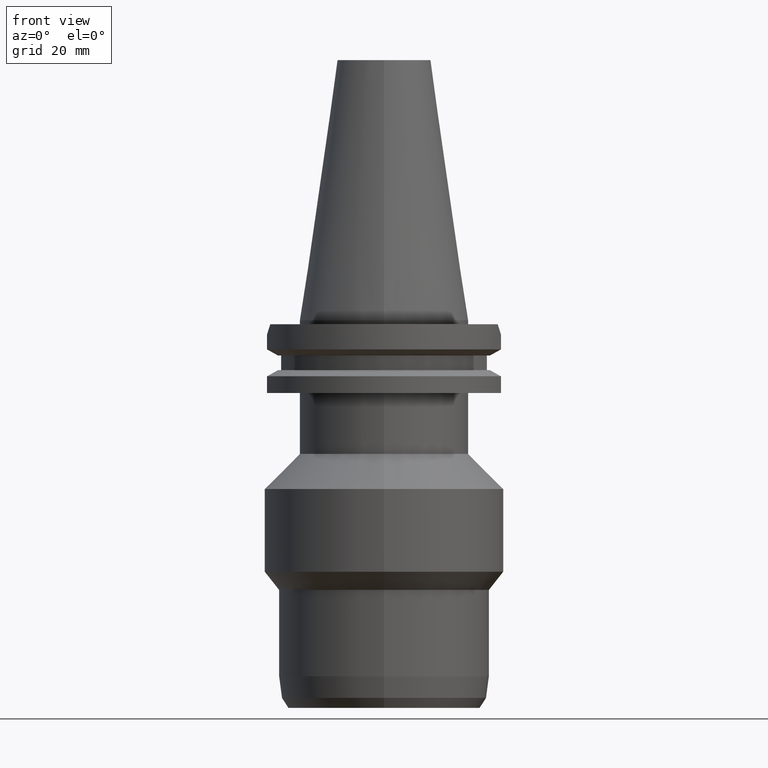
[diagram: clean part render]
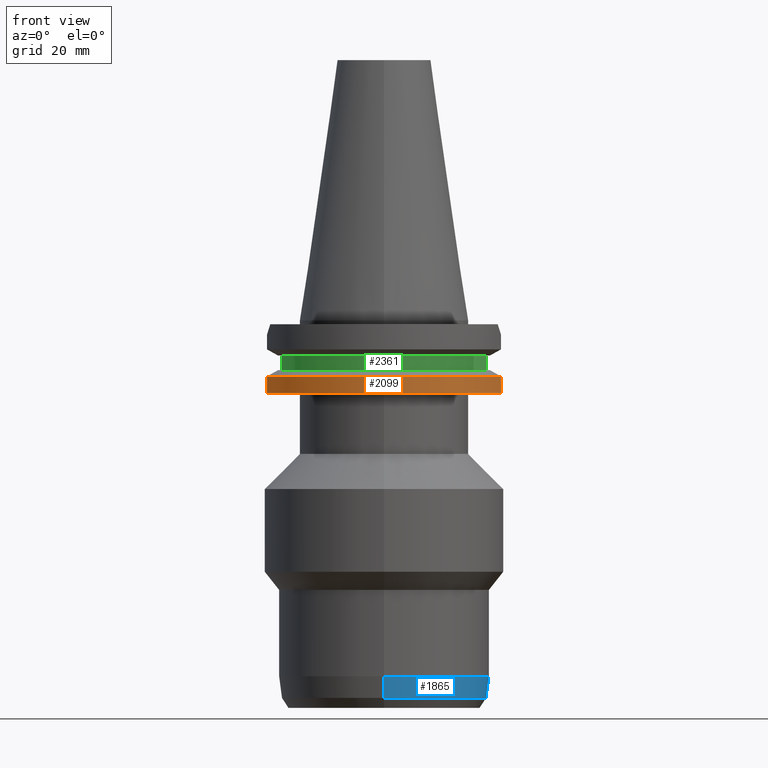
[diagram: same view with three faces highlighted in distinct colors, each labeled with its STEP entity id]
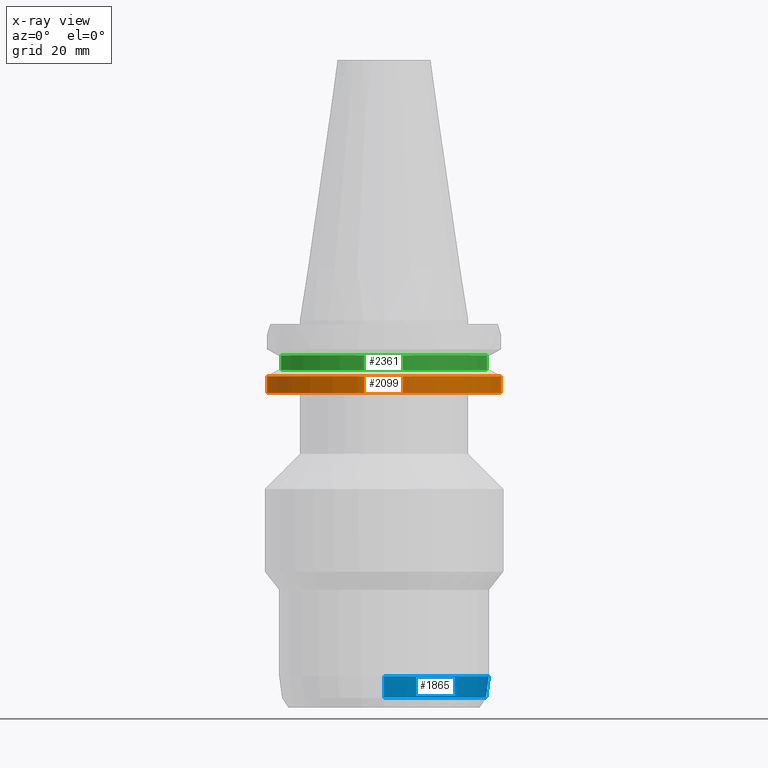
[diagram: x-ray of the same camera — body ghosted, the three highlighted faces saturated]
A machine part, front view with three faces highlighted in distinct colors.
The next image is the same camera in x-ray (body ghosted, the three faces saturated) — at least one of them is partly hidden behind the body in this view.
Their STEP definitions:

[orange] entity #2099 — the highlighted cylindrical surface (partial cylindrical patch) has radius 31.75 mm, axis along (0, 0, -1).
#571=CARTESIAN_POINT('',(0.E0,2.164471368983E-14,-1.905E1));
#572=DIRECTION('',(0.E0,0.E0,1.E0));
#573=DIRECTION('',(-9.661575315241E-1,-2.579527559055E-1,0.E0));
#574=AXIS2_PLACEMENT_3D('',#571,#572,#573);
#579=CARTESIAN_POINT('',(0.E0,2.164471368983E-14,-1.905E1));
#580=DIRECTION('',(0.E0,0.E0,1.E0));
#581=DIRECTION('',(0.E0,-1.E0,0.E0));
#582=AXIS2_PLACEMENT_3D('',#579,#580,#581);
#669=DIRECTION('',(3.682731597181E-8,1.379366239843E-7,-1.E0));
#670=VECTOR('',#669,4.396327811887E0);
#671=CARTESIAN_POINT('',(3.067550146399E1,-8.190000606415E0,-1.465367218811E1));
#672=LINE('',#671,#670);
#676=DIRECTION('',(-7.635537658565E-9,2.859820765913E-8,1.E0));
#677=VECTOR('',#676,4.396334354432E0);
#678=CARTESIAN_POINT('',(-3.067550162589E1,-8.19E0,-1.905E1));
#679=LINE('',#678,#677);
#1074=CARTESIAN_POINT('',(0.E0,1.055026073065E-14,-1.465366676908E1));
#1075=DIRECTION('',(0.E0,0.E0,-1.E0));
#1076=DIRECTION('',(9.661575315241E-1,-2.579527559055E-1,0.E0));
#1077=AXIS2_PLACEMENT_3D('',#1074,#1075,#1076);
#1082=CARTESIAN_POINT('',(0.E0,1.055026073065E-14,-1.465366676908E1));
#1083=DIRECTION('',(0.E0,0.E0,-1.E0));
#1084=DIRECTION('',(0.E0,-1.E0,0.E0));
#1085=AXIS2_PLACEMENT_3D('',#1082,#1083,#1084);
#1400=CARTESIAN_POINT('',(-3.067550162589E1,-8.19E0,-1.905E1));
#1401=VERTEX_POINT('',#1400);
#1402=CARTESIAN_POINT('',(1.540277123354E-14,-3.175E1,-1.905E1));
#1403=CARTESIAN_POINT('',(3.067550162589E1,-8.19E0,-1.905E1));
#1404=VERTEX_POINT('',#1402);
#1405=VERTEX_POINT('',#1403);
#1414=CARTESIAN_POINT('',(3.067550146399E1,-8.190000606415E0,
-1.465367218811E1));
#1415=VERTEX_POINT('',#1414);
#1426=CARTESIAN_POINT('',(-3.067550165946E1,-8.189999874273E0,
-1.465366564557E1));
#1427=VERTEX_POINT('',#1426);
#1428=CARTESIAN_POINT('',(0.E0,-3.175E1,-1.465366676908E1));
#1429=VERTEX_POINT('',#1428);
#2083=CARTESIAN_POINT('',(0.E0,2.164471368983E-14,7.67425E1));
#2084=DIRECTION('',(0.E0,0.E0,-1.E0));
#2085=DIRECTION('',(0.E0,-1.E0,0.E0));
#2086=AXIS2_PLACEMENT_3D('',#2083,#2084,#2085);
#2087=CYLINDRICAL_SURFACE('',#2086,3.175E1);
#2088=ORIENTED_EDGE('',*,*,#2063,.T.);
#2089=ORIENTED_EDGE('',*,*,#2027,.F.);
#2090=ORIENTED_EDGE('',*,*,#2025,.F.);
#2092=ORIENTED_EDGE('',*,*,#2091,.T.);
#2094=ORIENTED_EDGE('',*,*,#2093,.F.);
#2096=ORIENTED_EDGE('',*,*,#2095,.F.);
#2097=EDGE_LOOP('',(#2088,#2089,#2090,#2092,#2094,#2096));
#2098=FACE_OUTER_BOUND('',#2097,.F.);
#575=CIRCLE('',#574,3.175E1);
#583=CIRCLE('',#582,3.175E1);
#1078=CIRCLE('',#1077,3.175E1);
#1086=CIRCLE('',#1085,3.175E1);
#2025=EDGE_CURVE('',#1401,#1404,#575,.T.);
#2027=EDGE_CURVE('',#1404,#1405,#583,.T.);
#2063=EDGE_CURVE('',#1415,#1405,#672,.T.);
#2091=EDGE_CURVE('',#1401,#1427,#679,.T.);
#2093=EDGE_CURVE('',#1429,#1427,#1086,.T.);
#2095=EDGE_CURVE('',#1415,#1429,#1078,.T.);
#2099=ADVANCED_FACE('',(#2098),#2087,.T.);

[blue] entity #1865 — the highlighted conical surface has half-angle 7.5 deg.
#347=CARTESIAN_POINT('',(0.E0,0.E0,-9.900272249773E1));
#348=DIRECTION('',(0.E0,0.E0,1.E0));
#349=DIRECTION('',(0.E0,-1.E0,0.E0));
#350=AXIS2_PLACEMENT_3D('',#347,#348,#349);
#370=DIRECTION('',(0.E0,1.305261922187E-1,-9.914448613740E-1));
#371=VECTOR('',#370,5.741844775751E0);
#372=CARTESIAN_POINT('',(0.E0,-2.75E1,-9.331E1));
#373=LINE('',#372,#371);
#385=DIRECTION('',(0.E0,-1.305261922187E-1,-9.914448613740E-1));
#386=VECTOR('',#385,5.741844775751E0);
#387=CARTESIAN_POINT('',(0.E0,2.75E1,-9.331E1));
#388=LINE('',#387,#386);
#392=CARTESIAN_POINT('',(0.E0,0.E0,-9.331E1));
#393=DIRECTION('',(0.E0,0.E0,1.E0));
#394=DIRECTION('',(0.E0,-1.E0,0.E0));
#395=AXIS2_PLACEMENT_3D('',#392,#393,#394);
#1358=CARTESIAN_POINT('',(0.E0,2.675053886511E1,-9.900272249773E1));
#1359=VERTEX_POINT('',#1358);
#1360=CARTESIAN_POINT('',(0.E0,-2.675053886511E1,-9.900272249773E1));
#1361=VERTEX_POINT('',#1360);
#1362=CARTESIAN_POINT('',(0.E0,2.75E1,-9.331E1));
#1363=VERTEX_POINT('',#1362);
#1364=CARTESIAN_POINT('',(0.E0,-2.75E1,-9.331E1));
#1365=VERTEX_POINT('',#1364);
#1853=CARTESIAN_POINT('',(0.E0,0.E0,-9.615636124886E1));
#1854=DIRECTION('',(0.E0,0.E0,1.E0));
#1855=DIRECTION('',(0.E0,1.E0,0.E0));
#1856=AXIS2_PLACEMENT_3D('',#1853,#1854,#1855);
#1857=CONICAL_SURFACE('',#1856,2.712526943255E1,7.5E0);
#1858=ORIENTED_EDGE('',*,*,#1843,.T.);
#1859=ORIENTED_EDGE('',*,*,#1820,.F.);
#1860=ORIENTED_EDGE('',*,*,#1847,.F.);
#1862=ORIENTED_EDGE('',*,*,#1861,.T.);
#1863=EDGE_LOOP('',(#1858,#1859,#1860,#1862));
#1864=FACE_OUTER_BOUND('',#1863,.F.);
#351=CIRCLE('',#350,2.675053886512E1);
#396=CIRCLE('',#395,2.75E1);
#1820=EDGE_CURVE('',#1361,#1359,#351,.T.);
#1843=EDGE_CURVE('',#1363,#1359,#388,.T.);
#1847=EDGE_CURVE('',#1365,#1361,#373,.T.);
#1861=EDGE_CURVE('',#1365,#1363,#396,.T.);
#1865=ADVANCED_FACE('',(#1864),#1857,.T.);

[green] entity #2361 — the highlighted cylindrical surface (partial cylindrical patch) has radius 28.18 mm, axis along (0, 0, -1).
#972=CARTESIAN_POINT('',(0.E0,2.164471368983E-14,-9.2075E0));
#973=DIRECTION('',(0.E0,0.E0,-1.E0));
#974=DIRECTION('',(9.568350128908E-1,-2.906316536551E-1,0.E0));
#975=AXIS2_PLACEMENT_3D('',#972,#973,#974);
#980=CARTESIAN_POINT('',(0.E0,2.164471368983E-14,-9.2075E0));
#981=DIRECTION('',(0.E0,0.E0,-1.E0));
#982=DIRECTION('',(0.E0,-1.E0,0.E0));
#983=AXIS2_PLACEMENT_3D('',#980,#981,#982);
#1011=DIRECTION('',(0.E0,0.E0,-1.E0));
#1012=VECTOR('',#1011,3.84E0);
#1013=CARTESIAN_POINT('',(2.696361066326E1,-8.19E0,-9.2075E0));
#1014=LINE('',#1013,#1012);
#1018=DIRECTION('',(0.E0,0.E0,1.E0));
#1019=VECTOR('',#1018,3.84E0);
#1020=CARTESIAN_POINT('',(-2.696361066326E1,-8.19E0,-1.30475E1));
#1021=LINE('',#1020,#1019);
#1048=CARTESIAN_POINT('',(0.E0,2.164471368983E-14,-1.30475E1));
#1049=DIRECTION('',(0.E0,0.E0,1.E0));
#1050=DIRECTION('',(-9.568350128908E-1,-2.906316536551E-1,0.E0));
#1051=AXIS2_PLACEMENT_3D('',#1048,#1049,#1050);
#1056=CARTESIAN_POINT('',(0.E0,2.164471368983E-14,-1.30475E1));
#1057=DIRECTION('',(0.E0,0.E0,1.E0));
#1058=DIRECTION('',(0.E0,-1.E0,0.E0));
#1059=AXIS2_PLACEMENT_3D('',#1056,#1057,#1058);
#1417=CARTESIAN_POINT('',(2.696361066326E1,-8.19E0,-1.30475E1));
#1418=VERTEX_POINT('',#1417);
#1419=CARTESIAN_POINT('',(2.696361066326E1,-8.19E0,-9.2075E0));
#1420=VERTEX_POINT('',#1419);
#1443=CARTESIAN_POINT('',(-2.696361066326E1,-8.19E0,-9.2075E0));
#1444=VERTEX_POINT('',#1443);
#1445=CARTESIAN_POINT('',(-2.696361066326E1,-8.19E0,-1.30475E1));
#1446=VERTEX_POINT('',#1445);
#1474=CARTESIAN_POINT('',(3.729449030926E-14,-2.818E1,-1.30475E1));
#1475=VERTEX_POINT('',#1474);
#1480=CARTESIAN_POINT('',(-3.729449030926E-14,-2.818E1,-9.2075E0));
#1481=VERTEX_POINT('',#1480);
#2346=CARTESIAN_POINT('',(0.E0,2.164471368983E-14,7.67425E1));
#2347=DIRECTION('',(0.E0,0.E0,-1.E0));
#2348=DIRECTION('',(0.E0,-1.E0,0.E0));
#2349=AXIS2_PLACEMENT_3D('',#2346,#2347,#2348);
#2350=CYLINDRICAL_SURFACE('',#2349,2.818E1);
#2351=ORIENTED_EDGE('',*,*,#2069,.T.);
#2353=ORIENTED_EDGE('',*,*,#2352,.F.);
#2355=ORIENTED_EDGE('',*,*,#2354,.F.);
#2356=ORIENTED_EDGE('',*,*,#2116,.T.);
#2357=ORIENTED_EDGE('',*,*,#2338,.F.);
#2358=ORIENTED_EDGE('',*,*,#2336,.F.);
#2359=EDGE_LOOP('',(#2351,#2353,#2355,#2356,#2357,#2358));
#2360=FACE_OUTER_BOUND('',#2359,.F.);
#976=CIRCLE('',#975,2.818E1);
#984=CIRCLE('',#983,2.818E1);
#1052=CIRCLE('',#1051,2.818E1);
#1060=CIRCLE('',#1059,2.818E1);
#2069=EDGE_CURVE('',#1420,#1418,#1014,.T.);
#2116=EDGE_CURVE('',#1446,#1444,#1021,.T.);
#2336=EDGE_CURVE('',#1420,#1481,#976,.T.);
#2338=EDGE_CURVE('',#1481,#1444,#984,.T.);
#2352=EDGE_CURVE('',#1475,#1418,#1060,.T.);
#2354=EDGE_CURVE('',#1446,#1475,#1052,.T.);
#2361=ADVANCED_FACE('',(#2360),#2350,.T.);